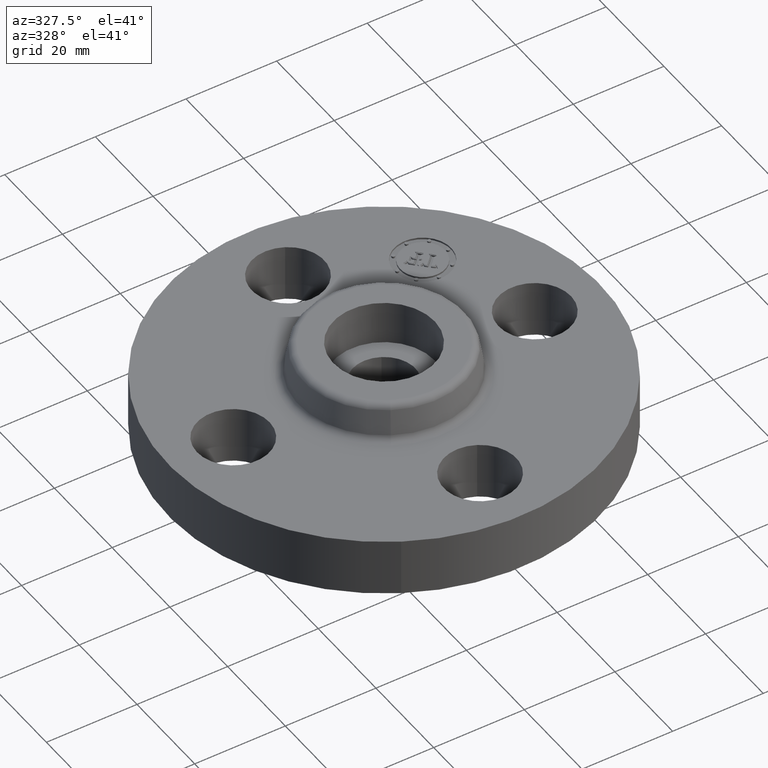
[diagram: clean part render]
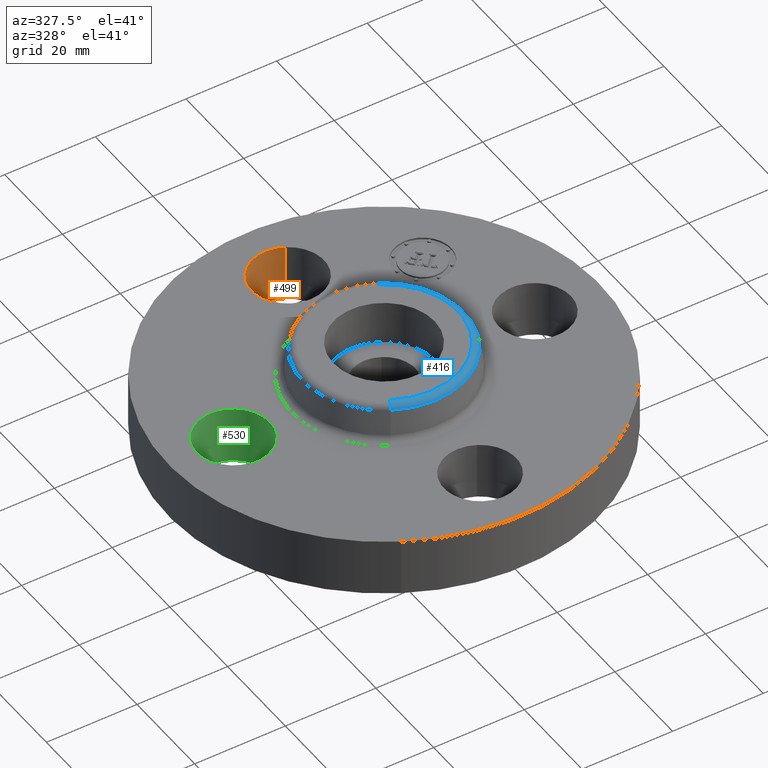
[diagram: same view with three faces highlighted in distinct colors, each labeled with its STEP entity id]
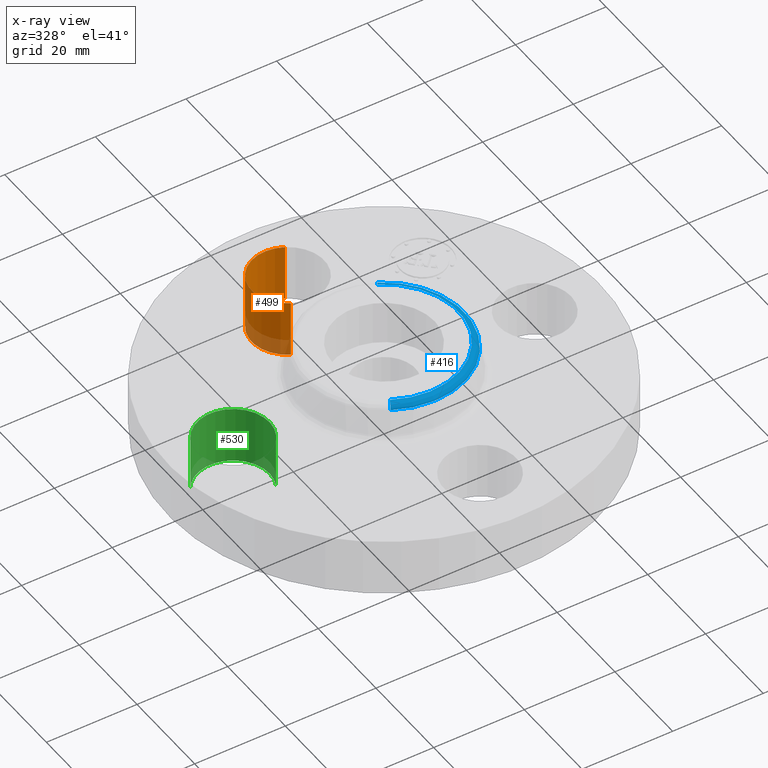
[diagram: x-ray of the same camera — body ghosted, the three highlighted faces saturated]
A machine part, auxiliary view with three faces highlighted in distinct colors.
The next image is the same camera in x-ray (body ghosted, the three faces saturated) — at least one of them is partly hidden behind the body in this view.
Their STEP definitions:

[orange] entity #499 — the highlighted cylindrical surface (partial cylindrical patch) has radius 8.001 mm, axis along (0, 0, -1).
#226=AXIS2_PLACEMENT_3D('Circle Axis2P3D',#224,#225,$) ;
#460=AXIS2_PLACEMENT_3D('Cylinder Axis2P3D',#457,#458,#459) ;
#490=AXIS2_PLACEMENT_3D('Circle Axis2P3D',#488,#489,$) ;
#224=CARTESIAN_POINT('Axis2P3D Location',(-3.1470888887E-016,1.31000000001,0.)) ;
#228=CARTESIAN_POINT('Vertex',(-0.151019044661,1.03356149301,0.)) ;
#230=CARTESIAN_POINT('Vertex',(0.151019044661,1.586438507,0.)) ;
#457=CARTESIAN_POINT('Axis2P3D Location',(-2.40643096033E-016,1.31000000001,0.496062992128)) ;
#462=CARTESIAN_POINT('Line Origine',(0.151019044661,1.586438507,0.250000000001)) ;
#466=CARTESIAN_POINT('Vertex',(0.151019044661,1.586438507,0.500000000002)) ;
#469=CARTESIAN_POINT('Line Origine',(-0.151019044661,1.03356149301,0.250000000001)) ;
#473=CARTESIAN_POINT('Vertex',(-0.151019044661,1.03356149301,0.500000000002)) ;
#488=CARTESIAN_POINT('Axis2P3D Location',(-2.40643096033E-016,1.31000000001,0.500000000002)) ;
#225=DIRECTION('Axis2P3D Direction',(0.,0.,-0.0393700787402)) ;
#458=DIRECTION('Axis2P3D Direction',(0.,0.,-0.0393700787402)) ;
#459=DIRECTION('Axis2P3D XDirection',(-0.0188750212049,-0.0345504945626,-0.)) ;
#463=DIRECTION('Vector Direction',(0.,0.,-0.0393700787402)) ;
#470=DIRECTION('Vector Direction',(0.,0.,-0.0393700787402)) ;
#489=DIRECTION('Axis2P3D Direction',(0.,0.,-0.0393700787402)) ;
#464=VECTOR('Line Direction',#463,0.0393700787402) ;
#471=VECTOR('Line Direction',#470,0.0393700787402) ;
#494=ORIENTED_EDGE('',*,*,#475,.F.) ;
#495=ORIENTED_EDGE('',*,*,#232,.T.) ;
#496=ORIENTED_EDGE('',*,*,#468,.T.) ;
#497=ORIENTED_EDGE('',*,*,#492,.F.) ;
#499=ADVANCED_FACE('PartBody',(#498),#461,.F.) ;
#227=CIRCLE('generated circle',#226,0.315000000001) ;
#491=CIRCLE('generated circle',#490,0.315000000001) ;
#461=CYLINDRICAL_SURFACE('generated cylinder',#460,0.315000000001) ;
#232=EDGE_CURVE('',#229,#231,#227,.T.) ;
#468=EDGE_CURVE('',#231,#467,#465,.F.) ;
#475=EDGE_CURVE('',#229,#474,#472,.F.) ;
#492=EDGE_CURVE('',#474,#467,#491,.T.) ;
#493=EDGE_LOOP('',(#494,#495,#496,#497)) ;
#498=FACE_OUTER_BOUND('',#493,.T.) ;
#465=LINE('Line',#462,#464) ;
#472=LINE('Line',#469,#471) ;
#229=VERTEX_POINT('',#228) ;
#231=VERTEX_POINT('',#230) ;
#467=VERTEX_POINT('',#466) ;
#474=VERTEX_POINT('',#473) ;

[blue] entity #416 — the highlighted toroidal blend (fillet) surface has major radius 16.3828 mm and minor (blend) radius 1.524 mm.
#357=AXIS2_PLACEMENT_3D('Circle Axis2P3D',#355,#356,$) ;
#389=AXIS2_PLACEMENT_3D('Torus Axis2P3D',#386,#387,#388) ;
#393=AXIS2_PLACEMENT_3D('Circle Axis2P3D',#391,#392,$) ;
#400=AXIS2_PLACEMENT_3D('Circle Axis2P3D',#398,#399,$) ;
#407=AXIS2_PLACEMENT_3D('Circle Axis2P3D',#405,#406,$) ;
#352=CARTESIAN_POINT('Vertex',(0.337554471756,0.617889315958,0.760418890663)) ;
#355=CARTESIAN_POINT('Axis2P3D Location',(0.,0.,0.760418890663)) ;
#359=CARTESIAN_POINT('Vertex',(-0.337554471756,-0.617889315958,0.760418890663)) ;
#386=CARTESIAN_POINT('Axis2P3D Location',(0.,0.,0.750000000003)) ;
#391=CARTESIAN_POINT('Axis2P3D Location',(0.309225952511,0.566034309307,0.750000000003)) ;
#395=CARTESIAN_POINT('Vertex',(0.309225952511,0.566034309307,0.810000000003)) ;
#398=CARTESIAN_POINT('Axis2P3D Location',(0.,0.,0.810000000003)) ;
#402=CARTESIAN_POINT('Vertex',(-0.309225952511,-0.566034309307,0.810000000003)) ;
#405=CARTESIAN_POINT('Axis2P3D Location',(-0.309225952511,-0.566034309307,0.750000000003)) ;
#356=DIRECTION('Axis2P3D Direction',(0.,0.,-0.0393700787402)) ;
#387=DIRECTION('Axis2P3D Direction',(0.,0.,-0.0393700787402)) ;
#388=DIRECTION('Axis2P3D XDirection',(-0.0188750212049,-0.0345504945626,0.)) ;
#392=DIRECTION('Axis2P3D Direction',(-0.0345504945626,0.0188750212049,0.)) ;
#399=DIRECTION('Axis2P3D Direction',(0.,0.,-0.0393700787402)) ;
#406=DIRECTION('Axis2P3D Direction',(0.0345504945626,-0.0188750212049,0.)) ;
#411=ORIENTED_EDGE('',*,*,#361,.F.) ;
#412=ORIENTED_EDGE('',*,*,#397,.T.) ;
#413=ORIENTED_EDGE('',*,*,#404,.T.) ;
#414=ORIENTED_EDGE('',*,*,#409,.F.) ;
#416=ADVANCED_FACE('PartBody',(#415),#390,.T.) ;
#358=CIRCLE('generated circle',#357,0.704081123293) ;
#394=CIRCLE('generated circle',#393,0.0600000000002) ;
#401=CIRCLE('generated circle',#400,0.644992658112) ;
#408=CIRCLE('generated circle',#407,0.0600000000002) ;
#390=TOROIDAL_SURFACE('homeo Torus',#389,0.644992658112,0.0600000000002) ;
#361=EDGE_CURVE('',#353,#360,#358,.T.) ;
#397=EDGE_CURVE('',#353,#396,#394,.F.) ;
#404=EDGE_CURVE('',#396,#403,#401,.T.) ;
#409=EDGE_CURVE('',#360,#403,#408,.F.) ;
#410=EDGE_LOOP('',(#411,#412,#413,#414)) ;
#415=FACE_OUTER_BOUND('',#410,.T.) ;
#353=VERTEX_POINT('',#352) ;
#360=VERTEX_POINT('',#359) ;
#396=VERTEX_POINT('',#395) ;
#403=VERTEX_POINT('',#402) ;

[green] entity #530 — the highlighted cylindrical surface (partial cylindrical patch) has radius 8.001 mm, axis along (-0, 0, -1).
#217=AXIS2_PLACEMENT_3D('Circle Axis2P3D',#215,#216,$) ;
#503=AXIS2_PLACEMENT_3D('Cylinder Axis2P3D',#500,#501,#502) ;
#521=AXIS2_PLACEMENT_3D('Circle Axis2P3D',#519,#520,$) ;
#210=CARTESIAN_POINT('Vertex',(-1.03356149301,-0.151019044661,0.)) ;
#212=CARTESIAN_POINT('Vertex',(-1.586438507,0.151019044661,0.)) ;
#215=CARTESIAN_POINT('Axis2P3D Location',(-1.31000000001,-6.99353086378E-017,0.)) ;
#500=CARTESIAN_POINT('Axis2P3D Location',(-1.31000000001,-1.60428730689E-016,0.496062992128)) ;
#505=CARTESIAN_POINT('Line Origine',(-1.586438507,0.151019044661,0.250000000001)) ;
#509=CARTESIAN_POINT('Vertex',(-1.586438507,0.151019044661,0.500000000002)) ;
#512=CARTESIAN_POINT('Line Origine',(-1.03356149301,-0.151019044661,0.250000000001)) ;
#516=CARTESIAN_POINT('Vertex',(-1.03356149301,-0.151019044661,0.500000000002)) ;
#519=CARTESIAN_POINT('Axis2P3D Location',(-1.31000000001,-1.60428730689E-016,0.500000000002)) ;
#216=DIRECTION('Axis2P3D Direction',(0.,0.,-0.0393700787402)) ;
#501=DIRECTION('Axis2P3D Direction',(-0.,0.,-0.0393700787402)) ;
#502=DIRECTION('Axis2P3D XDirection',(0.0345504945626,-0.0188750212049,-0.)) ;
#506=DIRECTION('Vector Direction',(0.,0.,-0.0393700787402)) ;
#513=DIRECTION('Vector Direction',(0.,0.,-0.0393700787402)) ;
#520=DIRECTION('Axis2P3D Direction',(-0.,0.,-0.0393700787402)) ;
#507=VECTOR('Line Direction',#506,0.0393700787402) ;
#514=VECTOR('Line Direction',#513,0.0393700787402) ;
#525=ORIENTED_EDGE('',*,*,#511,.F.) ;
#526=ORIENTED_EDGE('',*,*,#219,.T.) ;
#527=ORIENTED_EDGE('',*,*,#518,.T.) ;
#528=ORIENTED_EDGE('',*,*,#523,.F.) ;
#530=ADVANCED_FACE('PartBody',(#529),#504,.F.) ;
#218=CIRCLE('generated circle',#217,0.315000000001) ;
#522=CIRCLE('generated circle',#521,0.315000000001) ;
#504=CYLINDRICAL_SURFACE('generated cylinder',#503,0.315000000001) ;
#219=EDGE_CURVE('',#213,#211,#218,.T.) ;
#511=EDGE_CURVE('',#213,#510,#508,.F.) ;
#518=EDGE_CURVE('',#211,#517,#515,.F.) ;
#523=EDGE_CURVE('',#510,#517,#522,.T.) ;
#524=EDGE_LOOP('',(#525,#526,#527,#528)) ;
#529=FACE_OUTER_BOUND('',#524,.T.) ;
#508=LINE('Line',#505,#507) ;
#515=LINE('Line',#512,#514) ;
#211=VERTEX_POINT('',#210) ;
#213=VERTEX_POINT('',#212) ;
#510=VERTEX_POINT('',#509) ;
#517=VERTEX_POINT('',#516) ;